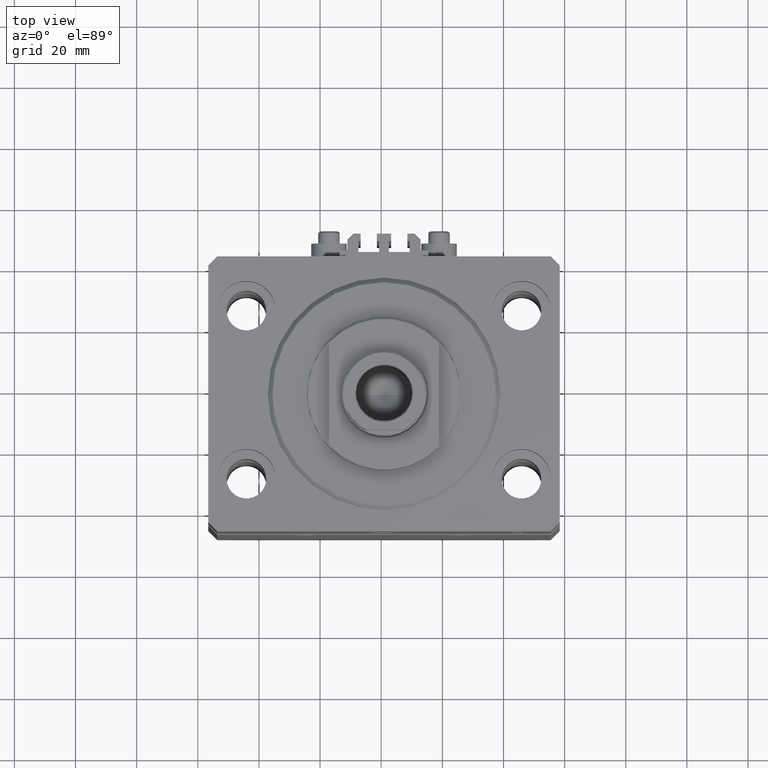
[diagram: clean part render]
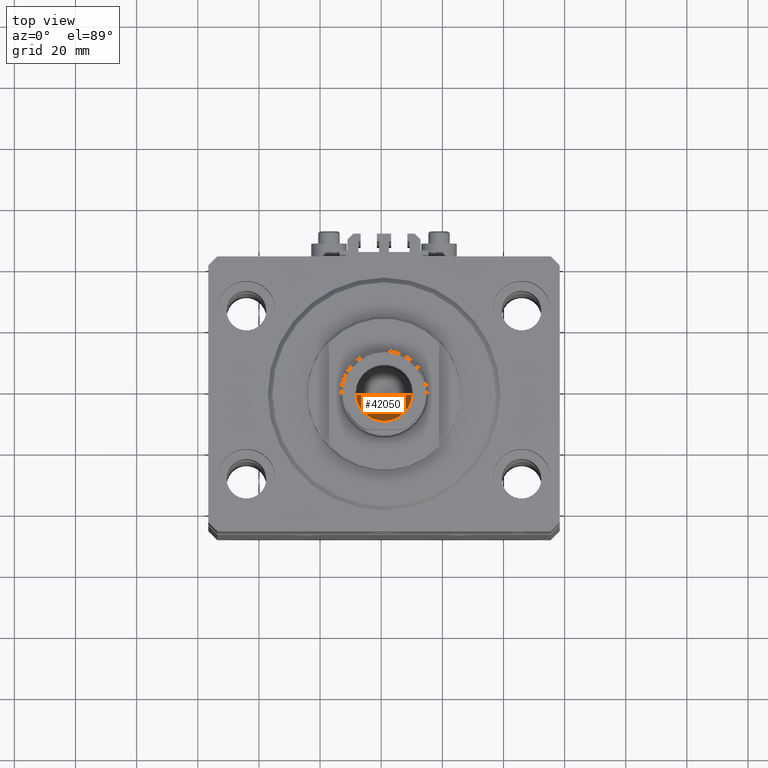
[diagram: same view with one face highlighted and labeled with its STEP entity id]
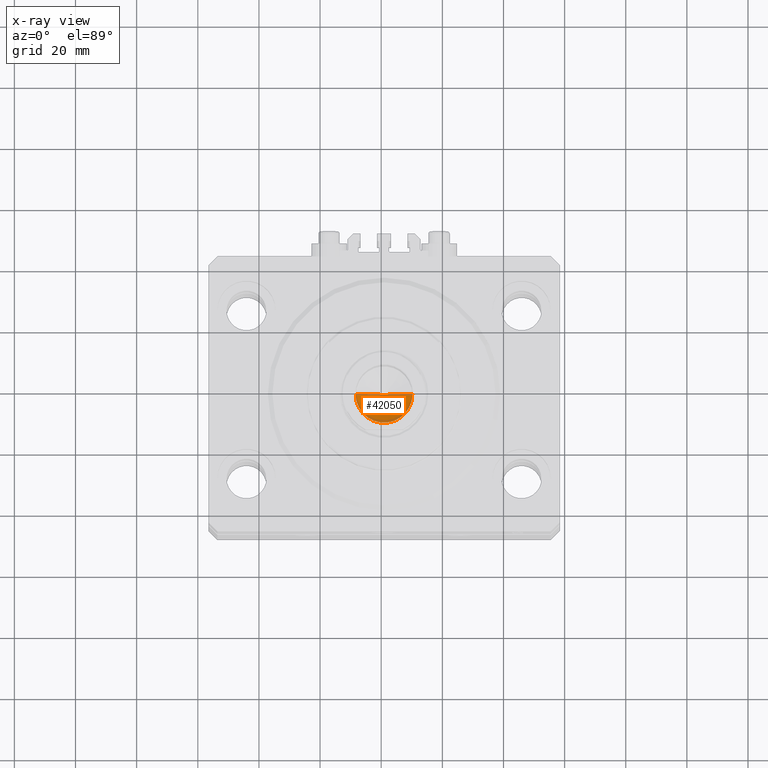
[diagram: x-ray of the same camera — body ghosted, the highlighted face saturated]
A machine part, top view. The second image highlights one B-rep face of the part: STEP entity #42050.
The next image is the same camera in x-ray: the body ghosted, the highlighted face saturated — about 8% of this face is hidden behind the body in this view.
In plain terms, the highlighted conical surface has half-angle 59 deg.
Its self-contained STEP definition (entity closure, byte-faithful):
#582 = CARTESIAN_POINT ( 'NONE',  ( 9.249999999999994671, 0.000000000000000000, 132.1000000000000227 ) ) ;
#2590 = VECTOR ( 'NONE', #43917, 1000.000000000000114 ) ;
#3613 = DIRECTION ( 'NONE',  ( -0.000000000000000000, -0.000000000000000000, 1.000000000000000000 ) ) ;
#3628 = CARTESIAN_POINT ( 'NONE',  ( -9.249999999999994671, 1.132798289211300909E-15, 132.1000000000000227 ) ) ;
#3639 = DIRECTION ( 'NONE',  ( 0.8571673007021122226, 0.000000000000000000, 0.5150380749100541555 ) ) ;
#4351 = ORIENTED_EDGE ( 'NONE', *, *, #15704, .F. ) ;
#4846 = EDGE_CURVE ( 'NONE', #48581, #13656, #46419, .T. ) ;
#7338 = CARTESIAN_POINT ( 'NONE',  ( 0.000000000000000000, 0.000000000000000000, 132.1000000000000227 ) ) ;
#9232 = DIRECTION ( 'NONE',  ( 1.000000000000000000, 0.000000000000000000, 0.000000000000000000 ) ) ;
#10244 = CARTESIAN_POINT ( 'NONE',  ( -1.046994375366439223E-14, 0.000000000000000000, 126.5420392739951012 ) ) ;
#10530 = CARTESIAN_POINT ( 'NONE',  ( -9.249999999999994671, 1.132798289211300909E-15, 132.1000000000000227 ) ) ;
#11620 = ORIENTED_EDGE ( 'NONE', *, *, #26682, .T. ) ;
#13656 = VERTEX_POINT ( 'NONE', #582 ) ;
#15294 = DIRECTION ( 'NONE',  ( 1.000000000000000000, 0.000000000000000000, 0.000000000000000000 ) ) ;
#15704 = EDGE_CURVE ( 'NONE', #20380, #13656, #48950, .T. ) ;
#19067 = ORIENTED_EDGE ( 'NONE', *, *, #4846, .T. ) ;
#20380 = VERTEX_POINT ( 'NONE', #10244 ) ;
#21759 = AXIS2_PLACEMENT_3D ( 'NONE', #34907, #43353, #9232 ) ;
#22232 = VECTOR ( 'NONE', #3639, 1000.000000000000114 ) ;
#26682 = EDGE_CURVE ( 'NONE', #20380, #48581, #33708, .T. ) ;
#30558 = EDGE_LOOP ( 'NONE', ( #4351, #11620, #19067 ) ) ;
#33708 = LINE ( 'NONE', #10530, #2590 ) ;
#34907 = CARTESIAN_POINT ( 'NONE',  ( 0.000000000000000000, 0.000000000000000000, 132.1000000000000227 ) ) ;
#37758 = CARTESIAN_POINT ( 'NONE',  ( 9.249999999999994671, 0.000000000000000000, 132.1000000000000227 ) ) ;
#42050 = ADVANCED_FACE ( 'NONE', ( #45702 ), #43194, .F. ) ;
#43194 = CONICAL_SURFACE ( 'NONE', #45588, 9.249999999999994671, 1.029744258676654534 ) ;
#43353 = DIRECTION ( 'NONE',  ( -0.000000000000000000, -0.000000000000000000, 1.000000000000000000 ) ) ;
#43917 = DIRECTION ( 'NONE',  ( -0.8571673007021122226, 1.049727191138618696E-16, 0.5150380749100541555 ) ) ;
#45588 = AXIS2_PLACEMENT_3D ( 'NONE', #7338, #3613, #15294 ) ;
#45702 = FACE_OUTER_BOUND ( 'NONE', #30558, .T. ) ;
#46419 = CIRCLE ( 'NONE', #21759, 9.249999999999994671 ) ;
#48581 = VERTEX_POINT ( 'NONE', #3628 ) ;
#48950 = LINE ( 'NONE', #37758, #22232 ) ;